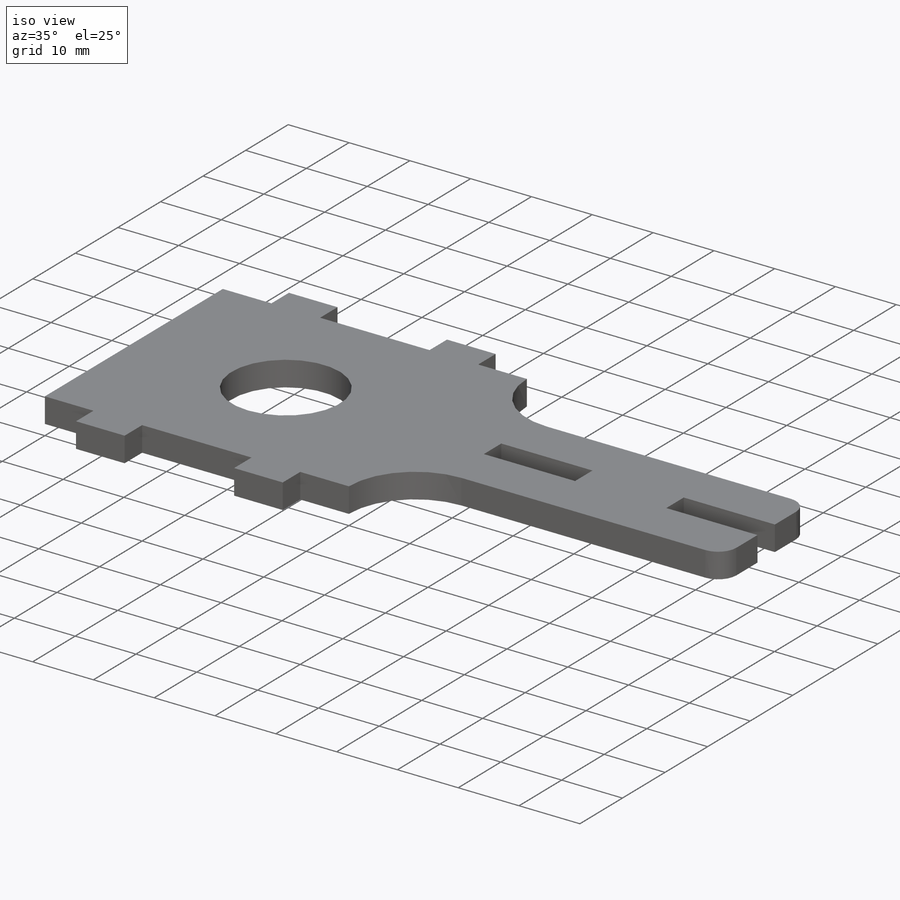
[diagram: iso view]
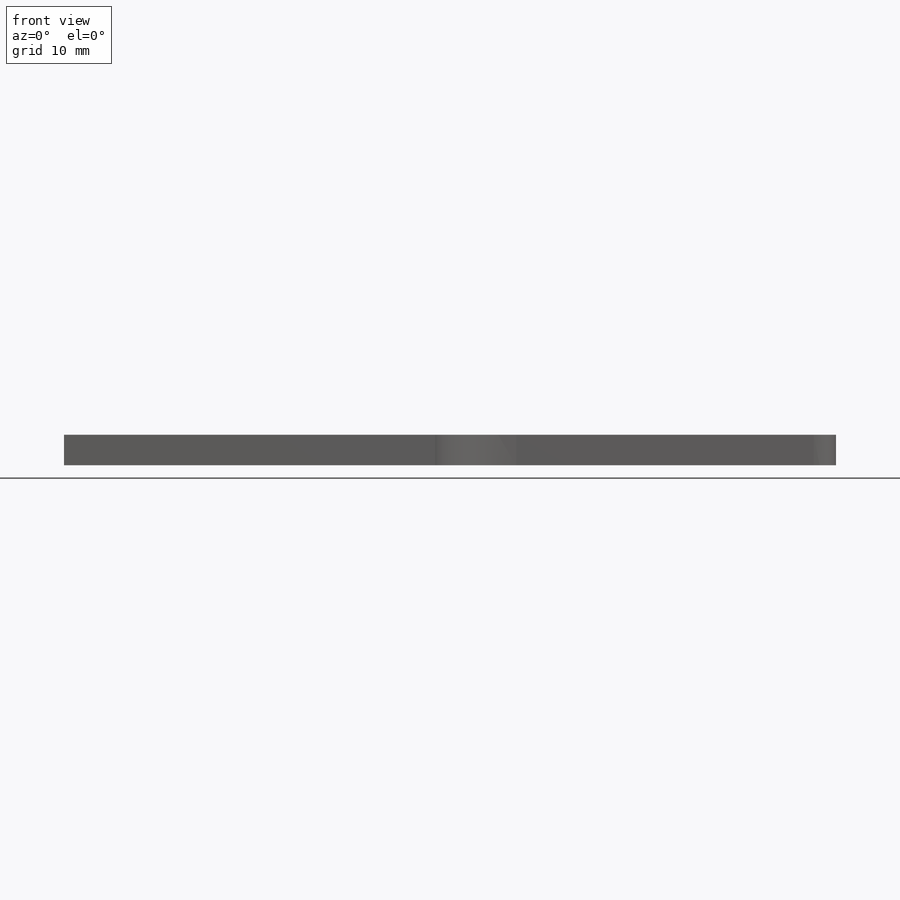
[diagram: front view]
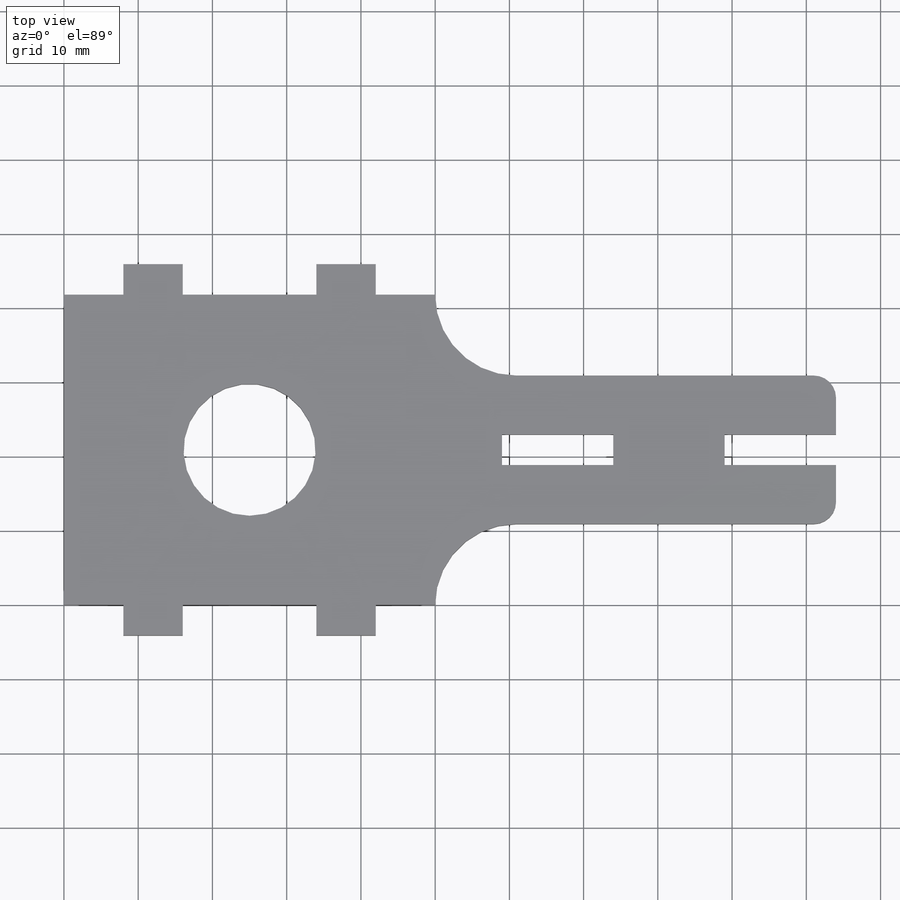
[diagram: top view]
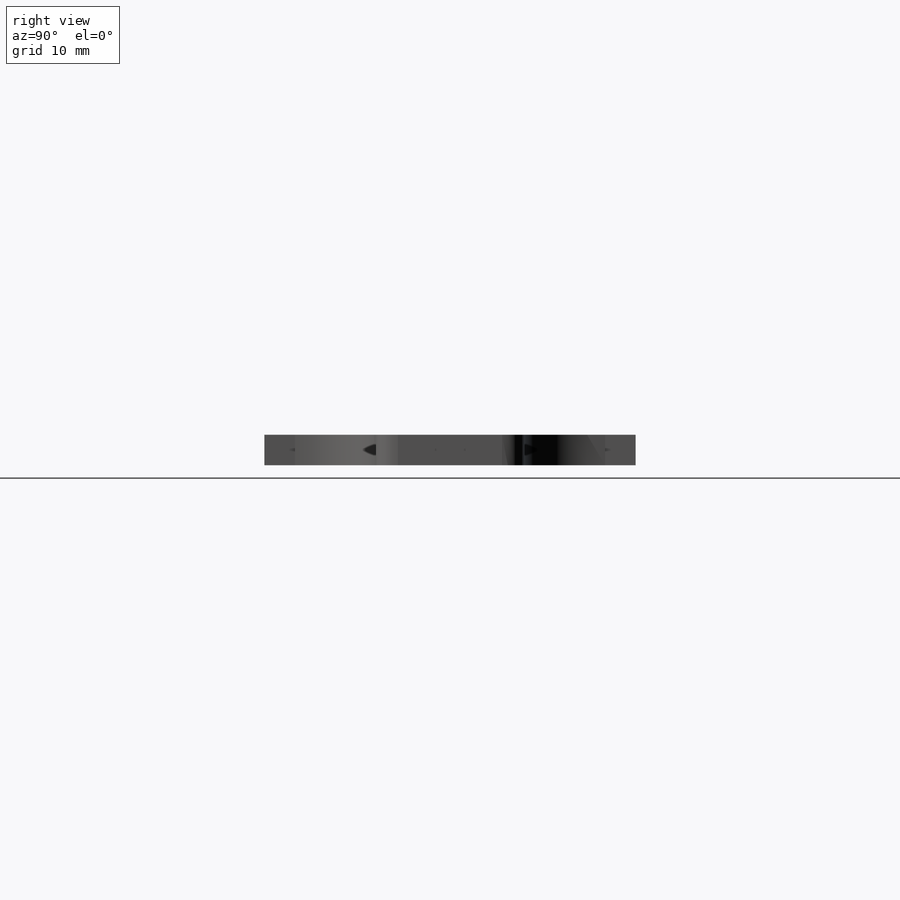
[diagram: right view]
SOLIDWORKS PART (.sldprt)
format: sldprt  version: not decoded by parser v0  size: 422,400 bytes
history: native  units: mm
features: sketch x2, fillet x2, material x1, extrude x1, cut_extrude x1 (+11 scaffold rows collapsed)
feature tree (18):
  scaffold x11  (default folders/planes/origin — collapsed)
  material  "Corrugated Paper"
  sketch  "Sketch1"  dims[c1.D5=2.0mm c1.D1=45.0mm c1.D2=50.0mm c1.D3=15.0mm c1.D4=5.0mm c1.D6=10.0mm c2.D3=40.0mm c2.D4=45.0mm c2.D1=50.0mm c2.D2=40.0mm c3.D3=8.0mm c3.D4=8.0mm c3.D5=4.1mm c3.D6=24.0mm c3.D2=50.0mm c4.D6=20.0mm c4.D7=54.0mm c4.D8=15.0mm c4.D9=4.1mm c4.D10=15.0mm]
  extrude  "Boss-Extrude1"  Depth=4.1mm
  sketch  "Sketch3"  dims[D1=17.78mm]
  cut_extrude  "Cut-Extrude2"  [1 undecoded]
  fillet  "Fillet2"  Radius=3mm
  fillet  "Fillet3"  Radius=10.9mm
decode coverage: 5 of 6 modeling features carry decoded parameters
note: 1 parameter value undecoded
note: suppression state not decoded; provenance and decode notes live in map.json
